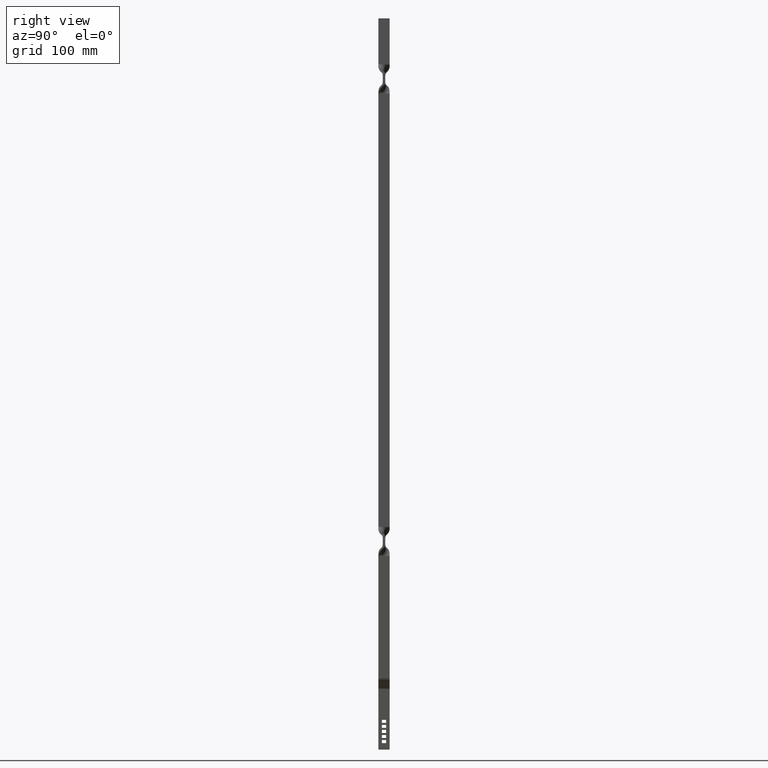
[diagram: clean part render]
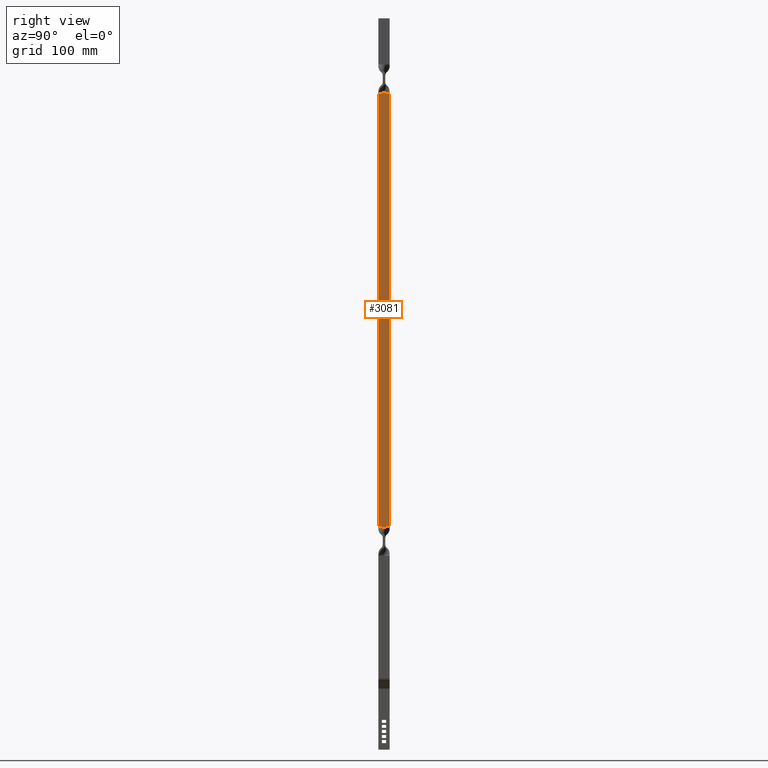
[diagram: same view with one face highlighted and labeled with its STEP entity id]
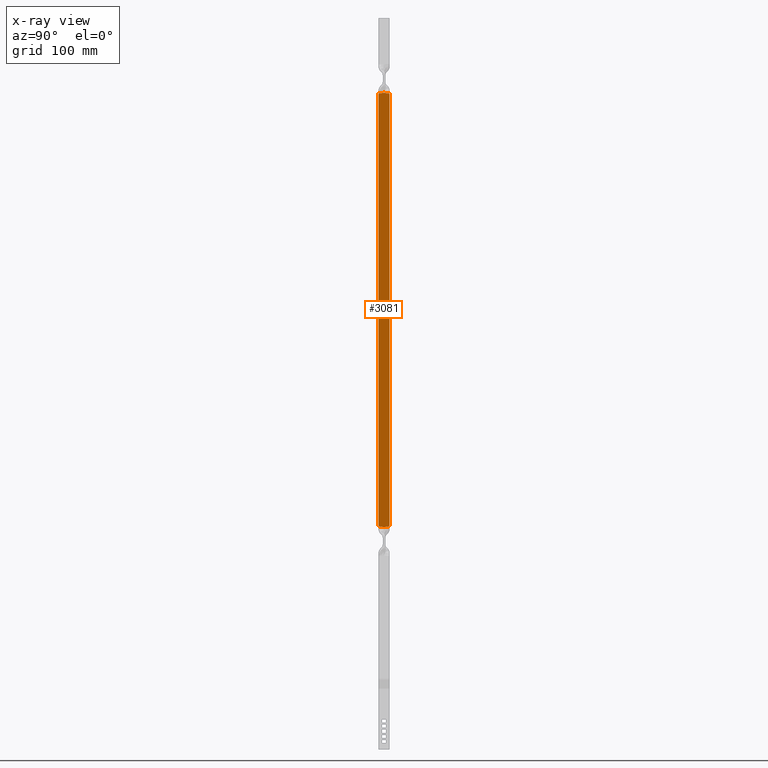
[diagram: x-ray of the same camera — body ghosted, the highlighted face saturated]
A machine part, right view. The second image highlights one B-rep face of the part: STEP entity #3081.
The next image is the same camera in x-ray: the body ghosted, the highlighted face saturated — about 0% of this face is hidden behind the body in this view.
In plain terms, the highlighted face is a freeform B-spline surface patch.
Its self-contained STEP definition (entity closure, byte-faithful):
#496=CARTESIAN_POINT('',(10.499999999853941,-0.271775746040426,806.499999864682990));
#497=VERTEX_POINT('',#496);
#498=CARTESIAN_POINT('',(10.499999999853960,-7.0,805.313138716634060));
#499=VERTEX_POINT('',#498);
#500=CARTESIAN_POINT('',(10.499999999853941,-0.271775746040426,806.499999864682990));
#501=CARTESIAN_POINT('',(10.499999999853880,-0.828537849737425,806.380513611488480));
#502=CARTESIAN_POINT('',(10.499999999854010,-1.385487364080913,806.259859835118960));
#503=CARTESIAN_POINT('',(10.499999999853999,-2.501421362214823,806.030177948832030));
#504=CARTESIAN_POINT('',(10.499999999853969,-3.060560236042478,805.921247943093360));
#505=CARTESIAN_POINT('',(10.499999999853960,-4.182009287865954,805.720279087534550));
#506=CARTESIAN_POINT('',(10.499999999854181,-4.743986133301718,805.628099401722120));
#507=CARTESIAN_POINT('',(10.499999999854181,-5.870319582463750,805.459521368778500));
#508=CARTESIAN_POINT('',(10.499999999853960,-6.434663200718070,805.383036908644610));
#509=CARTESIAN_POINT('',(10.499999999853960,-7.0,805.313138716634060));
#510=B_SPLINE_CURVE_WITH_KNOTS('',3,(#500,#501,#502,#503,#504,#505,#506,#507,#508,#509),.UNSPECIFIED.,.F.,.U.,(4,2,2,2,4),(0.0,0.250000000000000,0.500000000000000,0.750000000000000,1.0),.UNSPECIFIED.);
#511=EDGE_CURVE('',#497,#499,#510,.T.);
#644=CARTESIAN_POINT('',(10.499999999853960,7.0,805.289823060203960));
#645=VERTEX_POINT('',#644);
#646=CARTESIAN_POINT('',(10.499999999853960,7.0,805.289823060203960));
#647=CARTESIAN_POINT('',(10.499999999853960,6.389812878324850,805.363019088147670));
#648=CARTESIAN_POINT('',(10.499999999853930,5.780642736340772,805.443213533628520));
#649=CARTESIAN_POINT('',(10.499999999853930,4.564574697634913,805.619239040767750));
#650=CARTESIAN_POINT('',(10.499999999853820,3.957689163754459,805.715155178191250));
#651=CARTESIAN_POINT('',(10.499999999853820,2.746067614053544,805.921779513312800));
#652=CARTESIAN_POINT('',(10.499999999853999,2.141573673938096,806.032512533010500));
#653=CARTESIAN_POINT('',(10.499999999853999,0.934187228391792,806.262608756925150));
#654=CARTESIAN_POINT('',(10.499999999854010,0.331125423669212,806.381840323884720));
#655=CARTESIAN_POINT('',(10.499999999853941,-0.271775746040426,806.499999864682990));
#656=B_SPLINE_CURVE_WITH_KNOTS('',3,(#646,#647,#648,#649,#650,#651,#652,#653,#654,#655),.UNSPECIFIED.,.F.,.U.,(4,2,2,2,4),(0.0,0.250000000000000,0.500000000000000,0.750000000000000,1.0),.UNSPECIFIED.);
#657=EDGE_CURVE('',#645,#497,#656,.T.);
#919=CARTESIAN_POINT('',(10.499999999975699,-0.271775746044007,266.499999864596020));
#920=VERTEX_POINT('',#919);
#953=CARTESIAN_POINT('',(10.499999999854699,-7.0,267.686861012775010));
#954=VERTEX_POINT('',#953);
#955=CARTESIAN_POINT('',(10.499999999854699,-7.0,267.686861012775010));
#956=CARTESIAN_POINT('',(10.499999999854699,-6.434663200724742,267.616962820773780));
#957=CARTESIAN_POINT('',(10.499999999854641,-5.870319582476695,267.540478360651320));
#958=CARTESIAN_POINT('',(10.499999999854641,-4.743986133324971,267.371900327740210));
#959=CARTESIAN_POINT('',(10.499999999854790,-4.182009287893380,267.279720641948070));
#960=CARTESIAN_POINT('',(10.499999999854790,-3.060560236073143,267.078751786462080));
#961=CARTESIAN_POINT('',(10.499999999854710,-2.501421362246385,266.969821780759280));
#962=CARTESIAN_POINT('',(10.499999999854710,-1.385487364069855,266.740139894763620));
#963=CARTESIAN_POINT('',(10.499999999854699,-0.828537664186507,266.619486982348970));
#964=CARTESIAN_POINT('',(10.499999999975699,-0.271775746044007,266.499999864596020));
#965=B_SPLINE_CURVE_WITH_KNOTS('',3,(#955,#956,#957,#958,#959,#960,#961,#962,#963,#964),.UNSPECIFIED.,.F.,.U.,(4,2,2,2,4),(0.0,0.250000000000000,0.500000000000000,0.750000000000000,1.0),.UNSPECIFIED.);
#966=EDGE_CURVE('',#954,#920,#965,.T.);
#1031=CARTESIAN_POINT('',(10.499999999854699,7.0,267.710176668941020));
#1032=VERTEX_POINT('',#1031);
#1046=CARTESIAN_POINT('',(10.499999999975699,-0.271775746044007,266.499999864596020));
#1047=CARTESIAN_POINT('',(10.499999999854699,0.331125719977419,266.618157893530620));
#1048=CARTESIAN_POINT('',(10.499999999854690,0.934187228407689,266.737390971679820));
#1049=CARTESIAN_POINT('',(10.499999999854680,2.141573673908193,266.967487195925630));
#1050=CARTESIAN_POINT('',(10.499999999854669,2.746067614023937,267.078220215665110));
#1051=CARTESIAN_POINT('',(10.499999999854660,3.957689163727223,267.284844550870100));
#1052=CARTESIAN_POINT('',(10.499999999854801,4.564574697611906,267.380760688317480));
#1053=CARTESIAN_POINT('',(10.499999999854809,5.780642736327915,267.556786195494000));
#1054=CARTESIAN_POINT('',(10.499999999854699,6.389812878318085,267.636980640987190));
#1055=CARTESIAN_POINT('',(10.499999999854699,7.0,267.710176668941020));
#1056=B_SPLINE_CURVE_WITH_KNOTS('',3,(#1046,#1047,#1048,#1049,#1050,#1051,#1052,#1053,#1054,#1055),.UNSPECIFIED.,.F.,.U.,(4,2,2,2,4),(0.0,0.250000000000000,0.500000000000000,0.750000000000000,1.0),.UNSPECIFIED.);
#1057=EDGE_CURVE('',#920,#1032,#1056,.T.);
#3017=CARTESIAN_POINT('',(10.499999999854699,-7.0,267.686861012775010));
#3018=CARTESIAN_POINT('',(10.499999999853960,-7.0,805.313138716634060));
#3019=QUASI_UNIFORM_CURVE('',1,(#3017,#3018),.UNSPECIFIED.,.F.,.U.);
#3020=EDGE_CURVE('',#954,#499,#3019,.T.);
#3033=CARTESIAN_POINT('',(10.499999999854699,7.0,267.710176668941020));
#3034=CARTESIAN_POINT('',(10.499999999853960,7.0,805.289823060203960));
#3035=QUASI_UNIFORM_CURVE('',1,(#3033,#3034),.UNSPECIFIED.,.F.,.U.);
#3036=EDGE_CURVE('',#1032,#645,#3035,.T.);
#3068=CARTESIAN_POINT('',(10.499999999854699,-7.699299972865282,833.472998818062590));
#3069=CARTESIAN_POINT('',(10.499999999854699,-7.699299972865282,239.526986427287800));
#3070=CARTESIAN_POINT('',(10.499999999854699,7.699300348374544,833.472998818062590));
#3071=CARTESIAN_POINT('',(10.499999999854699,7.699300348374544,239.526986427287800));
#3072=B_SPLINE_SURFACE_WITH_KNOTS('',1,1,((#3068,#3070),(#3069,#3071)),.UNSPECIFIED.,.F.,.F.,.U.,(2,2),(2,2),(0.0,593.946012390774740),(0.0,15.398600321239829),.UNSPECIFIED.);
#3073=ORIENTED_EDGE('',*,*,#3036,.T.);
#3074=ORIENTED_EDGE('',*,*,#657,.T.);
#3075=ORIENTED_EDGE('',*,*,#511,.T.);
#3076=ORIENTED_EDGE('',*,*,#3020,.F.);
#3077=ORIENTED_EDGE('',*,*,#966,.T.);
#3078=ORIENTED_EDGE('',*,*,#1057,.T.);
#3079=EDGE_LOOP('',(#3073,#3074,#3075,#3076,#3077,#3078));
#3080=FACE_OUTER_BOUND('',#3079,.T.);
#3081=ADVANCED_FACE('',(#3080),#3072,.T.);